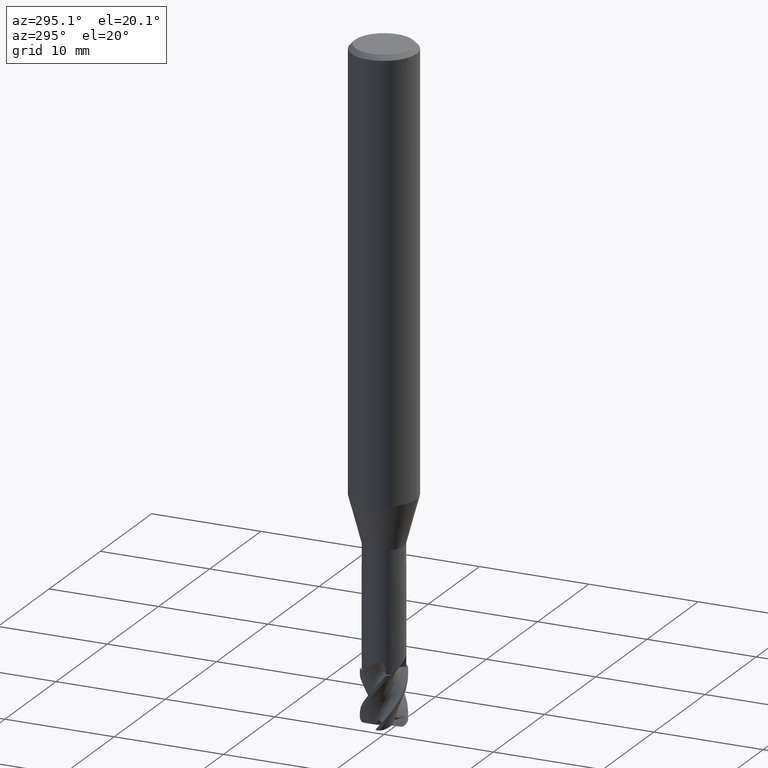
[diagram: clean part render]
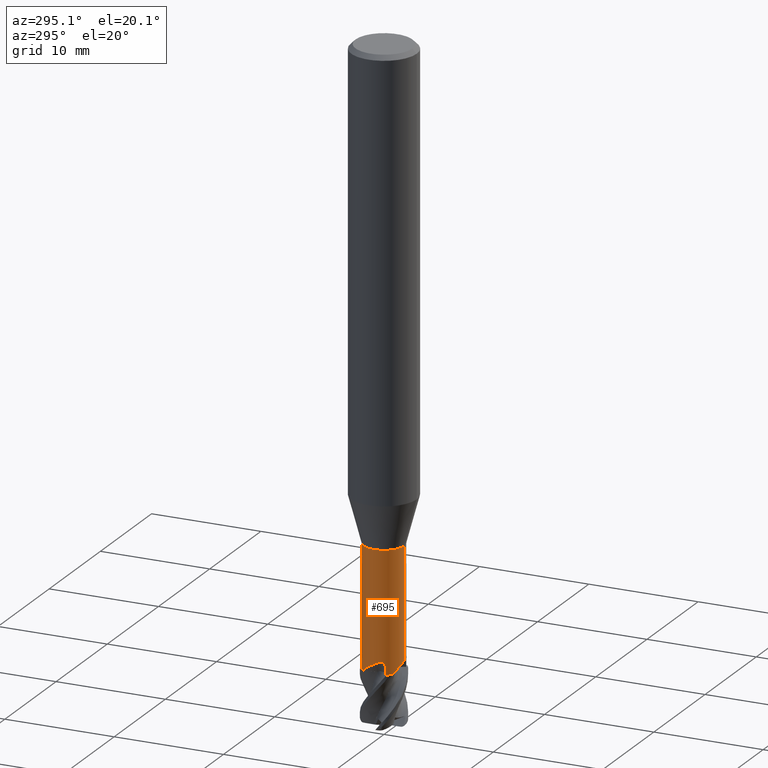
[diagram: same view with one face highlighted and labeled with its STEP entity id]
A machine part, auxiliary view. The second image highlights one B-rep face of the part: STEP entity #695.
In plain terms, the highlighted cylindrical surface (edge-blend (fillet) strip) has radius 1.8499 mm, axis along (-0, -0, 1).
Its self-contained STEP definition (entity closure, byte-faithful):
#515=VERTEX_POINT('',#1494);
#585=VERTEX_POINT('',#1573);
#675=VERTEX_POINT('',#1669);
#695=ADVANCED_FACE('',(#1690),#1691,.T.);
#727=EDGE_CURVE('',#585,#1095,#1727,.T.);
#737=EDGE_CURVE('',#1285,#775,#1738,.T.);
#767=EDGE_CURVE('',#585,#877,#1773,.T.);
#775=VERTEX_POINT('',#1781);
#873=EDGE_CURVE('',#877,#1335,#1887,.T.);
#877=VERTEX_POINT('',#1891);
#893=EDGE_CURVE('',#515,#1033,#1908,.T.);
#931=EDGE_CURVE('',#937,#675,#1951,.T.);
#937=VERTEX_POINT('',#1957);
#1033=VERTEX_POINT('',#2063);
#1041=EDGE_CURVE('',#1411,#515,#2072,.T.);
#1095=VERTEX_POINT('',#2135);
#1237=EDGE_CURVE('',#937,#1411,#2283,.T.);
#1247=EDGE_CURVE('',#1335,#675,#2294,.T.);
#1261=EDGE_CURVE('',#775,#1351,#2309,.T.);
#1285=VERTEX_POINT('',#2340);
#1311=EDGE_CURVE('',#1033,#1285,#2368,.T.);
#1335=VERTEX_POINT('',#2395);
#1351=VERTEX_POINT('',#2411);
#1411=VERTEX_POINT('',#2476);
#1471=EDGE_CURVE('',#1351,#1095,#2540,.T.);
#1494=CARTESIAN_POINT('',(2.26546052425371E-016,-1.84995,-44.0));
#1573=CARTESIAN_POINT('',(-1.3587969829833,1.25538271516517,-55.0));
#1669=CARTESIAN_POINT('',(-1.59899234686757,-0.930343203962361,-55.0));
#1690=FACE_OUTER_BOUND('',#3554,.T.);
#1691=CYLINDRICAL_SURFACE('',#3555,1.84995);
#1727=CIRCLE('',#3819,1.84995);
#1738=B_SPLINE_CURVE_WITH_KNOTS('',3,(#3833,#3834,#3835,#3836,#3837,#3838,#3839,#3840),.UNSPECIFIED.,.F.,.F.,(4,2,2,4),(0.0,0.678456856667117,1.43390027530377,2.10300590931044),.UNSPECIFIED.);
#1773=B_SPLINE_CURVE_WITH_KNOTS('',3,(#4102,#4103,#4104,#4105,#4106,#4107,#4108,#4109),.UNSPECIFIED.,.F.,.F.,(4,2,2,4),(0.0,0.678456856667052,1.43390027530362,2.10300590931031),.UNSPECIFIED.);
#1781=CARTESIAN_POINT('',(-0.364527360330862,1.81367990727973,-53.9043443518821));
#1887=B_SPLINE_CURVE_WITH_KNOTS('',3,(#4682,#4683,#4684,#4685,#4686,#4687,#4688,#4689,#4690,#4691,#4692,#4693,#4694,#4695),.UNSPECIFIED.,.F.,.F.,(4,2,2,2,2,2,4),(0.0,0.146255752914208,0.271726859971026,0.405659569847417,0.588954473360897,0.804127656714785,1.03090606845232),.UNSPECIFIED.);
#1891=CARTESIAN_POINT('',(-1.81367990727973,-0.364527360330853,-53.9043443518821));
#1908=CIRCLE('',#4895,1.84995);
#1951=CIRCLE('',#5192,1.84995);
#1957=CARTESIAN_POINT('',(-1.25538271516516,-1.35879698298331,-55.0));
#2063=CARTESIAN_POINT('',(0.0,1.84995,-44.0));
#2072=LINE('',#5651,#5652);
#2135=CARTESIAN_POINT('',(-0.930343203962369,1.59899234686756,-55.0));
#2283=B_SPLINE_CURVE_WITH_KNOTS('',3,(#6745,#6746,#6747,#6748,#6749,#6750,#6751,#6752),.UNSPECIFIED.,.F.,.F.,(4,2,2,4),(0.0,0.678456856667208,1.43390027530397,2.1030059093107),.UNSPECIFIED.);
#2294=B_SPLINE_CURVE_WITH_KNOTS('',3,(#6769,#6770,#6771,#6772),.UNSPECIFIED.,.F.,.F.,(4,4),(0.0,0.461968115727283),.UNSPECIFIED.);
#2309=B_SPLINE_CURVE_WITH_KNOTS('',3,(#6874,#6875,#6876,#6877,#6878,#6879,#6880,#6881,#6882,#6883,#6884,#6885,#6886,#6887),.UNSPECIFIED.,.F.,.F.,(4,2,2,2,2,2,4),(0.0,0.146255752914236,0.271726859971097,0.405659569847439,0.588954473360588,0.804127656714294,1.03090606845154),.UNSPECIFIED.);
#2340=CARTESIAN_POINT('',(3.58301973960268E-014,1.84995,-54.094504547049));
#2368=LINE('',#7027,#7028);
#2395=CARTESIAN_POINT('',(-1.6034041406099,-0.92271889780964,-54.5381053615156));
#2411=CARTESIAN_POINT('',(-0.922718897809648,1.60340414060989,-54.5381053615156));
#2476=CARTESIAN_POINT('',(-3.56081527911017E-014,-1.84995,-54.0945045470489));
#2540=B_SPLINE_CURVE_WITH_KNOTS('',3,(#7899,#7900,#7901,#7902),.UNSPECIFIED.,.F.,.F.,(4,4),(0.0,0.461968115735018),.UNSPECIFIED.);
#3554=EDGE_LOOP('',(#8085,#8086,#8087,#8088,#8089,#8090,#8091,#8092,#8093,#8094,#8095,#8096));
#3555=AXIS2_PLACEMENT_3D('',#8097,#8098,#8099);
#3819=AXIS2_PLACEMENT_3D('',#8138,#8139,#8140);
#3833=CARTESIAN_POINT('',(1.25538271516517,1.3587969829833,-55.0));
#3834=CARTESIAN_POINT('',(1.13644330859545,1.46868424136667,-54.842129596593));
#3835=CARTESIAN_POINT('',(0.996322908847657,1.56982203931715,-54.7061628424029));
#3836=CARTESIAN_POINT('',(0.644535166296736,1.74639438949122,-54.4413931862104));
#3837=CARTESIAN_POINT('',(0.437972862191055,1.81093451286821,-54.3233229203005));
#3838=CARTESIAN_POINT('',(0.0235122859117477,1.86015951283191,-54.1048152689609));
#3839=CARTESIAN_POINT('',(-0.17318963749898,1.85213643687774,-54.0083031677223));
#3840=CARTESIAN_POINT('',(-0.364527360330854,1.81367990727973,-53.9043443518821));
#4102=CARTESIAN_POINT('',(-1.3587969829833,1.25538271516517,-55.0));
#4103=CARTESIAN_POINT('',(-1.46868424136666,1.13644330859546,-54.842129596593));
#4104=CARTESIAN_POINT('',(-1.56982203931714,0.996322908847668,-54.7061628424029));
#4105=CARTESIAN_POINT('',(-1.74639438949122,0.644535166296735,-54.4413931862104));
#4106=CARTESIAN_POINT('',(-1.81093451286821,0.437972862191059,-54.3233229203005));
#4107=CARTESIAN_POINT('',(-1.86015951283192,0.0235122859117206,-54.1048152689608));
#4108=CARTESIAN_POINT('',(-1.85213643687774,-0.173189637498988,-54.0083031677223));
#4109=CARTESIAN_POINT('',(-1.81367990727973,-0.364527360330843,-53.9043443518821));
#4682=CARTESIAN_POINT('',(-1.81367990727848,-0.364527360337111,-53.9043443521431));
#4683=CARTESIAN_POINT('',(-1.80480957869656,-0.408661048148934,-53.8856284673292));
#4684=CARTESIAN_POINT('',(-1.79384619583339,-0.454753669989011,-53.874396570956));
#4685=CARTESIAN_POINT('',(-1.76932117102242,-0.541813532404128,-53.8735900256868));
#4686=CARTESIAN_POINT('',(-1.7569490236056,-0.580477696569634,-53.8812018948643));
#4687=CARTESIAN_POINT('',(-1.73015696198162,-0.656194741545094,-53.9128583535765));
#4688=CARTESIAN_POINT('',(-1.71633572682153,-0.691102876594404,-53.9371878563706));
#4689=CARTESIAN_POINT('',(-1.68545313719382,-0.763972446967245,-54.0072087323319));
#4690=CARTESIAN_POINT('',(-1.66921667294352,-0.79809077571128,-54.0571748934213));
#4691=CARTESIAN_POINT('',(-1.63983252752745,-0.857047034718222,-54.1729032138178));
#4692=CARTESIAN_POINT('',(-1.62721809566183,-0.880227689054268,-54.2417333586911));
#4693=CARTESIAN_POINT('',(-1.60929781431095,-0.912598492800007,-54.3853056778036));
#4694=CARTESIAN_POINT('',(-1.6041817741859,-0.921367607726872,-54.4618674771134));
#4695=CARTESIAN_POINT('',(-1.60340414065978,-0.922718897722968,-54.5381053615163));
#4895=AXIS2_PLACEMENT_3D('',#8319,#8320,#8321);
#5192=AXIS2_PLACEMENT_3D('',#8377,#8378,#8379);
#5651=CARTESIAN_POINT('',(2.26546052425371E-016,-1.84995,-49.5));
#5652=VECTOR('',#8529,1.0);
#6745=CARTESIAN_POINT('',(-1.25538271516518,-1.3587969829833,-55.0));
#6746=CARTESIAN_POINT('',(-1.13644330859544,-1.46868424136668,-54.842129596593));
#6747=CARTESIAN_POINT('',(-0.996322908847657,-1.56982203931715,-54.7061628424029));
#6748=CARTESIAN_POINT('',(-0.644535166296753,-1.74639438949121,-54.4413931862105));
#6749=CARTESIAN_POINT('',(-0.437972862191077,-1.81093451286821,-54.3233229203005));
#6750=CARTESIAN_POINT('',(-0.0235122859117566,-1.86015951283191,-54.1048152689609));
#6751=CARTESIAN_POINT('',(0.173189637498969,-1.85213643687774,-54.0083031677223));
#6752=CARTESIAN_POINT('',(0.364527360330844,-1.81367990727973,-53.9043443518821));
#6769=CARTESIAN_POINT('',(-1.60340414060991,-0.922718897809634,-54.5381053615156));
#6770=CARTESIAN_POINT('',(-1.60183376301054,-0.925447735325742,-54.6920625439429));
#6771=CARTESIAN_POINT('',(-1.60036098550683,-0.92799090784143,-54.8460344410845));
#6772=CARTESIAN_POINT('',(-1.59899234686756,-0.930343203962362,-55.0));
#6874=CARTESIAN_POINT('',(-0.364527360337116,1.81367990727847,-53.9043443521431));
#6875=CARTESIAN_POINT('',(-0.408661048148948,1.80480957869654,-53.8856284673292));
#6876=CARTESIAN_POINT('',(-0.454753669989025,1.79384619583339,-53.874396570956));
#6877=CARTESIAN_POINT('',(-0.541813532404139,1.76932117102243,-53.8735900256868));
#6878=CARTESIAN_POINT('',(-0.580477696569644,1.7569490236056,-53.8812018948643));
#6879=CARTESIAN_POINT('',(-0.656194741545073,1.73015696198163,-53.9128583535765));
#6880=CARTESIAN_POINT('',(-0.691102876594358,1.71633572682155,-53.9371878563705));
#6881=CARTESIAN_POINT('',(-0.763972446967274,1.68545313719381,-54.0072087323319));
#6882=CARTESIAN_POINT('',(-0.798090775711319,1.6692166729435,-54.0571748934214));
#6883=CARTESIAN_POINT('',(-0.857047034718224,1.63983252752746,-54.1729032138178));
#6884=CARTESIAN_POINT('',(-0.880227689054269,1.62721809566183,-54.2417333586911));
#6885=CARTESIAN_POINT('',(-0.912598492800015,1.60929781431095,-54.3853056778037));
#6886=CARTESIAN_POINT('',(-0.921367607726879,1.60418177418589,-54.4618674771134));
#6887=CARTESIAN_POINT('',(-0.922718897722975,1.60340414065977,-54.5381053615163));
#7027=CARTESIAN_POINT('',(-2.26546052425371E-016,1.84995,-49.5));
#7028=VECTOR('',#8840,1.0);
#7899=CARTESIAN_POINT('',(-0.922718897809639,1.6034041406099,-54.5381053615156));
#7900=CARTESIAN_POINT('',(-0.925447735325792,1.60183376301049,-54.6920625439455));
#7901=CARTESIAN_POINT('',(-0.927990907841457,1.60036098550682,-54.8460344410858));
#7902=CARTESIAN_POINT('',(-0.930343203962369,1.59899234686756,-55.0));
#8085=ORIENTED_EDGE('',*,*,#1311,.T.);
#8086=ORIENTED_EDGE('',*,*,#737,.T.);
#8087=ORIENTED_EDGE('',*,*,#1261,.T.);
#8088=ORIENTED_EDGE('',*,*,#1471,.T.);
#8089=ORIENTED_EDGE('',*,*,#727,.F.);
#8090=ORIENTED_EDGE('',*,*,#767,.T.);
#8091=ORIENTED_EDGE('',*,*,#873,.T.);
#8092=ORIENTED_EDGE('',*,*,#1247,.T.);
#8093=ORIENTED_EDGE('',*,*,#931,.F.);
#8094=ORIENTED_EDGE('',*,*,#1237,.T.);
#8095=ORIENTED_EDGE('',*,*,#1041,.T.);
#8096=ORIENTED_EDGE('',*,*,#893,.T.);
#8097=CARTESIAN_POINT('',(0.0,0.0,-49.5));
#8098=DIRECTION('',(-0.0,-0.0,1.0));
#8099=DIRECTION('',(0.0,1.0,0.0));
#8138=CARTESIAN_POINT('',(0.0,0.0,-55.0));
#8139=DIRECTION('',(0.0,0.0,-1.0));
#8140=DIRECTION('',(0.0,1.0,0.0));
#8319=CARTESIAN_POINT('',(0.0,0.0,-44.0));
#8320=DIRECTION('',(0.0,0.0,-1.0));
#8321=DIRECTION('',(0.0,1.0,0.0));
#8377=CARTESIAN_POINT('',(0.0,0.0,-55.0));
#8378=DIRECTION('',(0.0,0.0,-1.0));
#8379=DIRECTION('',(0.0,1.0,0.0));
#8529=DIRECTION('',(-0.0,-0.0,1.0));
#8840=DIRECTION('',(0.0,0.0,-1.0));